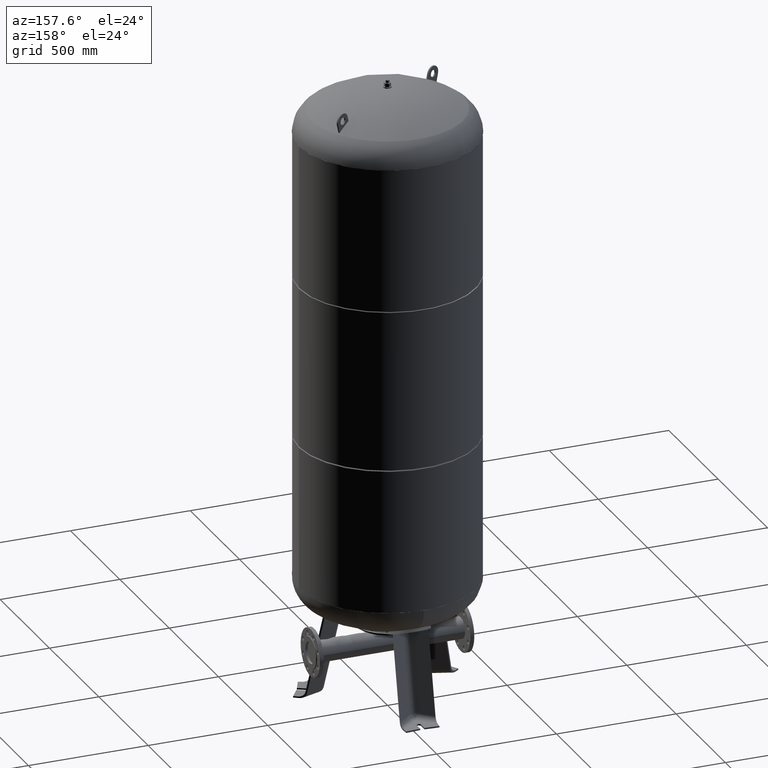
[diagram: clean part render]
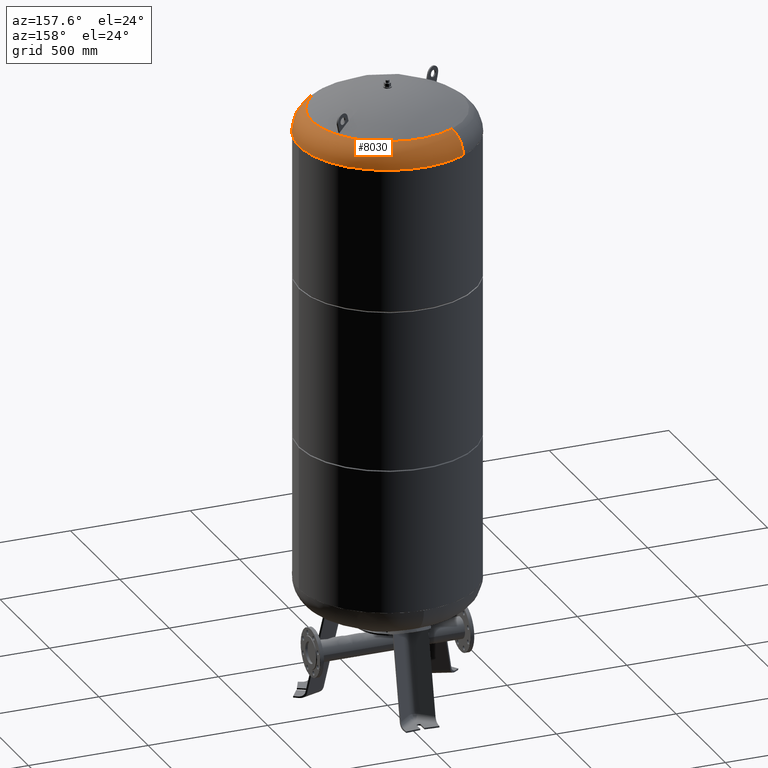
[diagram: same view with one face highlighted and labeled with its STEP entity id]
A machine part, auxiliary view. The second image highlights one B-rep face of the part: STEP entity #8030.
In plain terms, the highlighted toroidal blend (fillet) surface has major radius 254.5 mm and minor (blend) radius 115.5 mm.
Its self-contained STEP definition (entity closure, byte-faithful):
#7935=CARTESIAN_POINT('',(320.429399400242350,184.999999999999940,2384.206120388130300));
#7936=VERTEX_POINT('',#7935);
#7960=CARTESIAN_POINT('',(-184.999999999999970,320.429399400242350,2384.206120388130300));
#7961=VERTEX_POINT('',#7960);
#7969=CARTESIAN_POINT('',(-2.682575E-015,-4.159481E-014,2384.206120388130300));
#7970=DIRECTION('',(-1.060575E-016,-6.123234E-017,-1.000000000000000));
#7971=DIRECTION('',(0.866025403784439,0.500000000000000,-1.224647E-016));
#7972=AXIS2_PLACEMENT_3D('',#7969,#7970,#7971);
#7973=CIRCLE('',#7972,370.0);
#7974=EDGE_CURVE('',#7961,#7936,#7973,.T.);
#7979=CARTESIAN_POINT('',(-2.682575E-015,-4.159481E-014,2384.206120388130300));
#7980=DIRECTION('',(-1.420901E-017,-2.203186E-016,-1.0));
#7981=DIRECTION('',(0.500000000000000,-0.866025403784439,1.836970E-016));
#7982=AXIS2_PLACEMENT_3D('',#7979,#7980,#7981);
#7983=TOROIDAL_SURFACE('',#7982,254.500000000000030,115.500000000000000);
#7984=CARTESIAN_POINT('',(185.0,-320.429399400242400,2384.206120388130300));
#7985=VERTEX_POINT('',#7984);
#7986=CARTESIAN_POINT('',(157.965517241379270,-273.604301705966460,2482.014494274920300));
#7987=VERTEX_POINT('',#7986);
#7988=CARTESIAN_POINT('',(127.249999999999970,-220.403465263139680,2384.206120388130300));
#7989=DIRECTION('',(-0.866025403784439,-0.500000000000000,1.224647E-016));
#7990=DIRECTION('',(0.500000000000000,-0.866025403784439,0.0));
#7991=AXIS2_PLACEMENT_3D('',#7988,#7989,#7990);
#7992=CIRCLE('',#7991,115.499999999999990);
#7993=EDGE_CURVE('',#7985,#7987,#7992,.T.);
#7994=ORIENTED_EDGE('',*,*,#7993,.F.);
#7995=CARTESIAN_POINT('',(-2.682575E-015,-4.159481E-014,2384.206120388130300));
#7996=DIRECTION('',(-1.060575E-016,-6.123234E-017,-1.000000000000000));
#7997=DIRECTION('',(0.866025403784439,0.500000000000000,-1.224647E-016));
#7998=AXIS2_PLACEMENT_3D('',#7995,#7996,#7997);
#7999=CIRCLE('',#7998,370.0);
#8000=EDGE_CURVE('',#7936,#7985,#7999,.T.);
#8001=ORIENTED_EDGE('',*,*,#8000,.F.);
#8002=ORIENTED_EDGE('',*,*,#7974,.F.);
#8003=CARTESIAN_POINT('',(-157.965517241379250,273.604301705966410,2482.014494274920300));
#8004=VERTEX_POINT('',#8003);
#8005=CARTESIAN_POINT('',(-127.249999999999970,220.403465263139680,2384.206120388130300));
#8006=DIRECTION('',(0.866025403784439,0.500000000000000,-1.224647E-016));
#8007=DIRECTION('',(-0.500000000000000,0.866025403784439,0.0));
#8008=AXIS2_PLACEMENT_3D('',#8005,#8006,#8007);
#8009=CIRCLE('',#8008,115.500000000000010);
#8010=EDGE_CURVE('',#7961,#8004,#8009,.T.);
#8011=ORIENTED_EDGE('',*,*,#8010,.T.);
#8012=CARTESIAN_POINT('',(273.604301705966460,157.965517241379250,2482.014494274920300));
#8013=VERTEX_POINT('',#8012);
#8014=CARTESIAN_POINT('',(-1.292814E-015,-2.004580E-014,2482.014494274920300));
#8015=DIRECTION('',(-1.060575E-016,-6.123234E-017,-1.0));
#8016=DIRECTION('',(0.866025403784439,0.500000000000000,-1.224647E-016));
#8017=AXIS2_PLACEMENT_3D('',#8014,#8015,#8016);
#8018=CIRCLE('',#8017,315.931034482758610);
#8019=EDGE_CURVE('',#8004,#8013,#8018,.T.);
#8020=ORIENTED_EDGE('',*,*,#8019,.T.);
#8021=CARTESIAN_POINT('',(-1.292814E-015,-2.004580E-014,2482.014494274920300));
#8022=DIRECTION('',(-1.060575E-016,-6.123234E-017,-1.0));
#8023=DIRECTION('',(0.866025403784439,0.500000000000000,-1.224647E-016));
#8024=AXIS2_PLACEMENT_3D('',#8021,#8022,#8023);
#8025=CIRCLE('',#8024,315.931034482758610);
#8026=EDGE_CURVE('',#8013,#7987,#8025,.T.);
#8027=ORIENTED_EDGE('',*,*,#8026,.T.);
#8028=EDGE_LOOP('',(#7994,#8001,#8002,#8011,#8020,#8027));
#8029=FACE_OUTER_BOUND('',#8028,.T.);
#8030=ADVANCED_FACE('',(#8029),#7983,.T.);